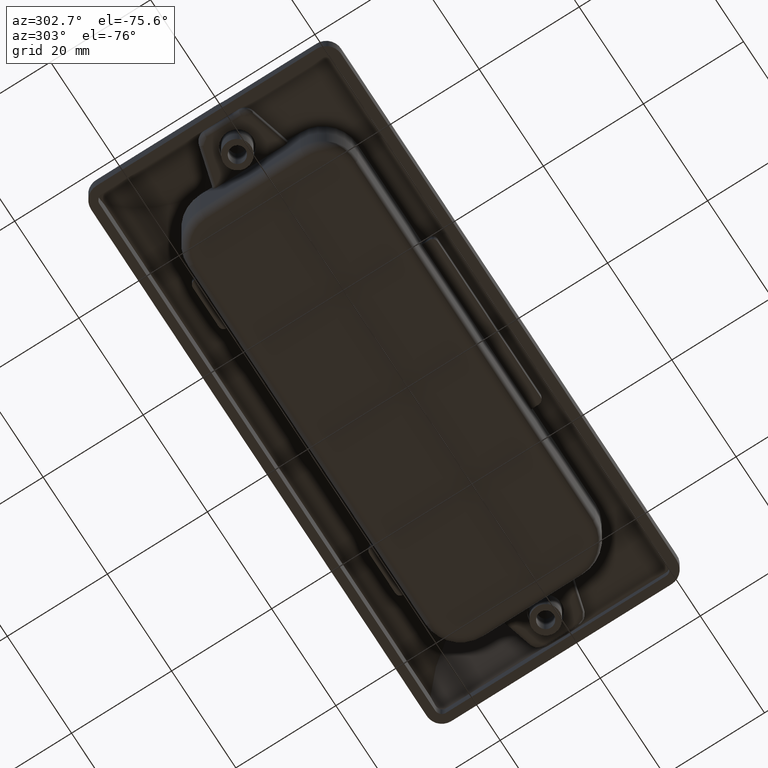
[diagram: clean part render]
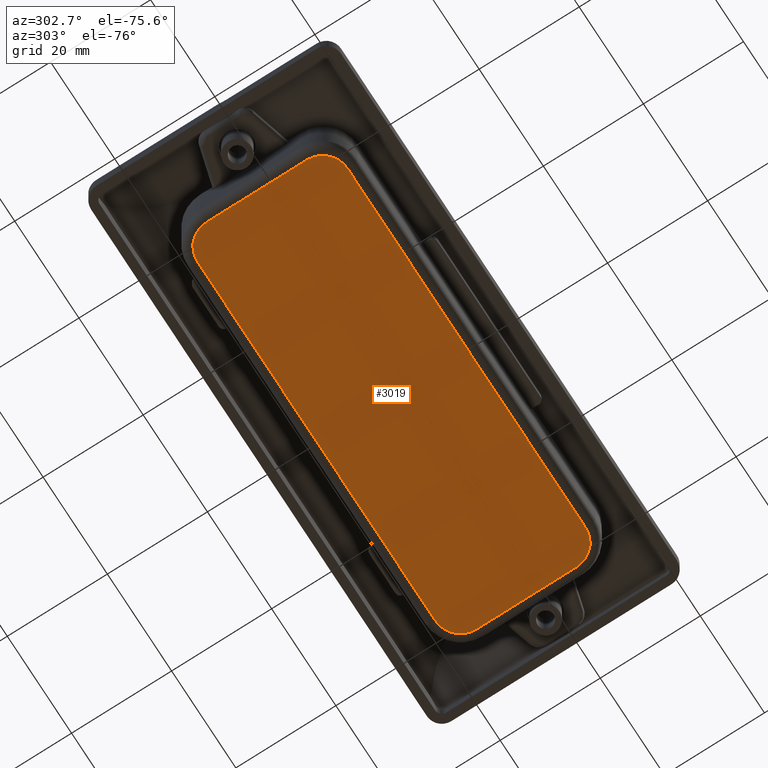
[diagram: same view with one face highlighted and labeled with its STEP entity id]
A machine part, auxiliary view. The second image highlights one B-rep face of the part: STEP entity #3019.
In plain terms, the highlighted planar face has unit normal (-0, 0, 1).
Its self-contained STEP definition (entity closure, byte-faithful):
#83=PLANE('',#3305);
#255=LINE('',#5247,#493);
#256=LINE('',#5251,#494);
#257=LINE('',#5255,#495);
#258=LINE('',#5258,#496);
#493=VECTOR('',#3984,74.);
#494=VECTOR('',#3987,20.);
#495=VECTOR('',#3990,74.);
#496=VECTOR('',#3993,20.);
#811=FACE_OUTER_BOUND('',#996,.T.);
#996=EDGE_LOOP('',(#2502,#2503,#2504,#2505,#2506,#2507,#2508,#2509));
#1197=CIRCLE('',#3306,5.);
#1198=CIRCLE('',#3307,5.00000000000001);
#1199=CIRCLE('',#3308,5.00000000000001);
#1200=CIRCLE('',#3309,5.);
#1425=VERTEX_POINT('',#5243);
#1426=VERTEX_POINT('',#5244);
#1427=VERTEX_POINT('',#5246);
#1428=VERTEX_POINT('',#5248);
#1429=VERTEX_POINT('',#5250);
#1430=VERTEX_POINT('',#5252);
#1431=VERTEX_POINT('',#5254);
#1432=VERTEX_POINT('',#5256);
#1804=EDGE_CURVE('',#1425,#1426,#1197,.T.);
#1805=EDGE_CURVE('',#1427,#1425,#255,.T.);
#1806=EDGE_CURVE('',#1428,#1427,#1198,.T.);
#1807=EDGE_CURVE('',#1429,#1428,#256,.T.);
#1808=EDGE_CURVE('',#1430,#1429,#1199,.T.);
#1809=EDGE_CURVE('',#1431,#1430,#257,.T.);
#1810=EDGE_CURVE('',#1432,#1431,#1200,.T.);
#1811=EDGE_CURVE('',#1426,#1432,#258,.T.);
#2502=ORIENTED_EDGE('',*,*,#1804,.F.);
#2503=ORIENTED_EDGE('',*,*,#1805,.F.);
#2504=ORIENTED_EDGE('',*,*,#1806,.F.);
#2505=ORIENTED_EDGE('',*,*,#1807,.F.);
#2506=ORIENTED_EDGE('',*,*,#1808,.F.);
#2507=ORIENTED_EDGE('',*,*,#1809,.F.);
#2508=ORIENTED_EDGE('',*,*,#1810,.F.);
#2509=ORIENTED_EDGE('',*,*,#1811,.F.);
#3019=ADVANCED_FACE('',(#811),#83,.F.);
#3305=AXIS2_PLACEMENT_3D('',#5242,#3980,#3981);
#3306=AXIS2_PLACEMENT_3D('',#5245,#3982,#3983);
#3307=AXIS2_PLACEMENT_3D('',#5249,#3985,#3986);
#3308=AXIS2_PLACEMENT_3D('',#5253,#3988,#3989);
#3309=AXIS2_PLACEMENT_3D('',#5257,#3991,#3992);
#3980=DIRECTION('center_axis',(0.,0.,1.));
#3981=DIRECTION('ref_axis',(1.,0.,0.));
#3982=DIRECTION('center_axis',(0.,0.,1.));
#3983=DIRECTION('ref_axis',(-0.707106781186547,0.707106781186548,0.));
#3984=DIRECTION('',(-1.,0.,0.));
#3985=DIRECTION('center_axis',(0.,0.,1.));
#3986=DIRECTION('ref_axis',(0.707106781186547,0.707106781186547,0.));
#3987=DIRECTION('',(0.,1.,0.));
#3988=DIRECTION('center_axis',(0.,0.,1.));
#3989=DIRECTION('ref_axis',(0.707106781186547,-0.707106781186547,0.));
#3990=DIRECTION('',(1.,0.,0.));
#3991=DIRECTION('center_axis',(0.,0.,1.));
#3992=DIRECTION('ref_axis',(-0.707106781186547,-0.707106781186548,0.));
#3993=DIRECTION('',(0.,-1.,0.));
#5242=CARTESIAN_POINT('Origin',(3.0143612527753E-15,-6.02872250555059E-16,
-12.));
#5243=CARTESIAN_POINT('',(-37.,15.,-12.));
#5244=CARTESIAN_POINT('',(-42.,10.,-12.));
#5245=CARTESIAN_POINT('Origin',(-37.,10.,-12.));
#5246=CARTESIAN_POINT('',(37.,15.,-12.));
#5247=CARTESIAN_POINT('',(-18.5,15.,-12.));
#5248=CARTESIAN_POINT('',(42.,10.,-12.));
#5249=CARTESIAN_POINT('Origin',(37.,10.,-12.));
#5250=CARTESIAN_POINT('',(42.,-10.,-12.));
#5251=CARTESIAN_POINT('',(42.,5.,-12.));
#5252=CARTESIAN_POINT('',(37.,-15.,-12.));
#5253=CARTESIAN_POINT('Origin',(37.,-10.,-12.));
#5254=CARTESIAN_POINT('',(-37.,-15.,-12.));
#5255=CARTESIAN_POINT('',(18.5,-15.,-12.));
#5256=CARTESIAN_POINT('',(-42.,-10.,-12.));
#5257=CARTESIAN_POINT('Origin',(-37.,-10.,-12.));
#5258=CARTESIAN_POINT('',(-42.,-5.,-12.));